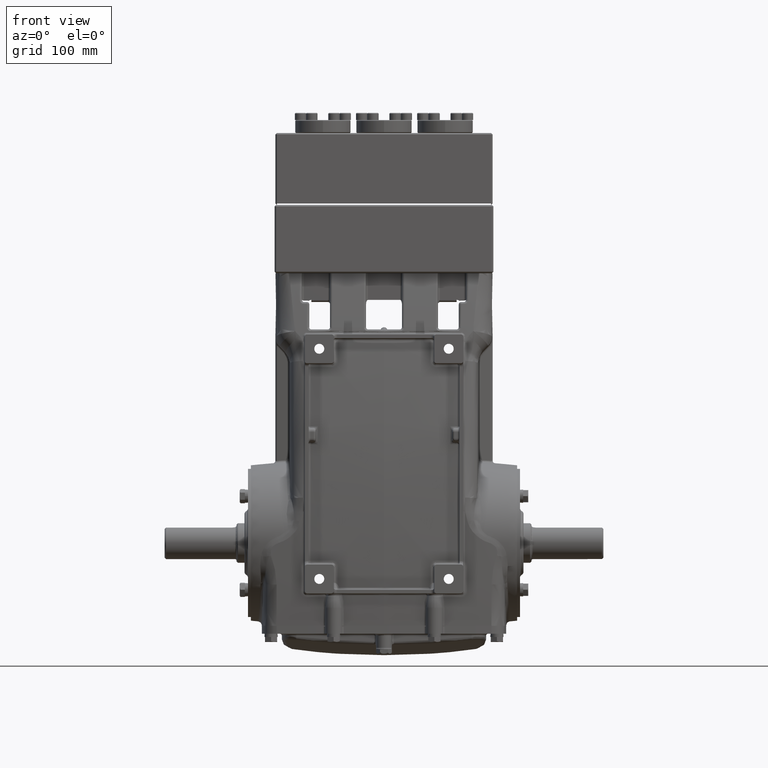
[diagram: clean part render]
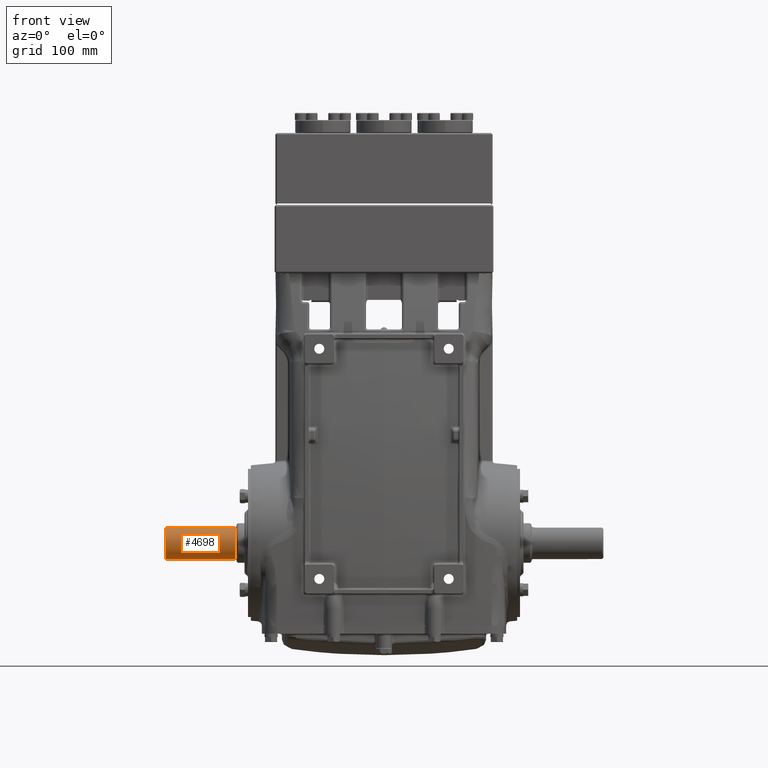
[diagram: same view with one face highlighted and labeled with its STEP entity id]
A machine part, front view. The second image highlights one B-rep face of the part: STEP entity #4698.
In plain terms, the highlighted cylindrical surface (edge-blend (fillet) strip) has radius 22.5 mm, axis along (1, -0, -0).
Its self-contained STEP definition (entity closure, byte-faithful):
#359 = CARTESIAN_POINT ( 'NONE',  ( -8.256239951148126366, -0.2605671799535790867, 0.8466415289152062762 ) ) ;
#1081 = CARTESIAN_POINT ( 'NONE',  ( -8.149606299212598159, 0.000000000000000000, -0.8858267716535433989 ) ) ;
#1147 = CARTESIAN_POINT ( 'NONE',  ( -8.247673071881232332, -0.2574385571765950842, 0.8476013659305283721 ) ) ;
#1526 = LINE ( 'NONE', #30376, #25406 ) ;
#4698 = ADVANCED_FACE ( 'NONE', ( #67054 ), #43008, .T. ) ;
#7264 = CARTESIAN_POINT ( 'NONE',  ( -8.149606299212598159, 0.000000000000000000, 0.000000000000000000 ) ) ;
#9033 = ORIENTED_EDGE ( 'NONE', *, *, #10081, .T. ) ;
#9686 = CARTESIAN_POINT ( 'NONE',  ( -11.92913385826771488, 0.000000000000000000, -0.8858267716535433989 ) ) ;
#10081 = EDGE_CURVE ( 'NONE', #78208, #75008, #34289, .T. ) ;
#13503 = AXIS2_PLACEMENT_3D ( 'NONE', #65529, #35070, #22655 ) ;
#18765 = CARTESIAN_POINT ( 'NONE',  ( -8.273768425878982313, -0.2659900968066949423, 0.8449534911186555863 ) ) ;
#18966 = DIRECTION ( 'NONE',  ( 0.000000000000000000, 0.000000000000000000, -1.000000000000000000 ) ) ;
#22165 = EDGE_CURVE ( 'NONE', #76443, #47158, #1526, .T. ) ;
#22655 = DIRECTION ( 'NONE',  ( 0.000000000000000000, 0.000000000000000000, 1.000000000000000000 ) ) ;
#25406 = VECTOR ( 'NONE', #79209, 39.37007874015748143 ) ;
#25546 = CARTESIAN_POINT ( 'NONE',  ( -8.346456692913385211, -0.2755905511811023167, 0.8418663299347676210 ) ) ;
#26272 = CIRCLE ( 'NONE', #13503, 0.8858267716535433989 ) ;
#28254 = EDGE_LOOP ( 'NONE', ( #43400, #71058, #49044, #9033, #38393 ) ) ;
#30376 = CARTESIAN_POINT ( 'NONE',  ( -12.00787401574803148, 0.000000000000000000, -0.8858267716535433989 ) ) ;
#31960 = CARTESIAN_POINT ( 'NONE',  ( -8.222543806565662194, -0.2468327346962480018, 0.8507744342314309538 ) ) ;
#34289 = B_SPLINE_CURVE_WITH_KNOTS ( 'NONE', 3,
 ( #79221, #68032, #55197, #55995, #31960, #1147, #359, #18765, #36784, #43200, #67244, #25546 ),
 .UNSPECIFIED., .F., .F.,
 ( 4, 2, 2, 2, 2, 4 ),
 ( 0.005430606697455180563, 0.006826616170667087861, 0.008222625643878996027, 0.008920630380484911512, 0.009618635117090826997, 0.01101464459030265970 ),
 .UNSPECIFIED. ) ;
#35070 = DIRECTION ( 'NONE',  ( 1.000000000000000000, 0.000000000000000000, 0.000000000000000000 ) ) ;
#36724 = AXIS2_PLACEMENT_3D ( 'NONE', #7264, #74908, #50480 ) ;
#36784 = CARTESIAN_POINT ( 'NONE',  ( -8.282784261081184596, -0.2682925596649305966, 0.8442226319676584545 ) ) ;
#36912 = AXIS2_PLACEMENT_3D ( 'NONE', #37768, #56199, #18966 ) ;
#37768 = CARTESIAN_POINT ( 'NONE',  ( -12.00787401574803148, 0.000000000000000000, 0.000000000000000000 ) ) ;
#38393 = ORIENTED_EDGE ( 'NONE', *, *, #59900, .T. ) ;
#43008 = CYLINDRICAL_SURFACE ( 'NONE', #36912, 0.8858267716535433989 ) ;
#43094 = CARTESIAN_POINT ( 'NONE',  ( -8.149606299212603489, -0.1928732080931684356, 0.8645744588975481371 ) ) ;
#43200 = CARTESIAN_POINT ( 'NONE',  ( -8.309881745342988069, -0.2737738521065506969, 0.8424676073061592163 ) ) ;
#43400 = ORIENTED_EDGE ( 'NONE', *, *, #66810, .T. ) ;
#45495 = EDGE_CURVE ( 'NONE', #47158, #78208, #71266, .T. ) ;
#46814 = CARTESIAN_POINT ( 'NONE',  ( -12.00787401574803148, -0.2755905511811023723, 0.8418663299347676210 ) ) ;
#47158 = VERTEX_POINT ( 'NONE', #1081 ) ;
#49044 = ORIENTED_EDGE ( 'NONE', *, *, #45495, .T. ) ;
#50480 = DIRECTION ( 'NONE',  ( 0.000000000000000000, 0.000000000000000000, -1.000000000000000000 ) ) ;
#54618 = CARTESIAN_POINT ( 'NONE',  ( -8.346456692913385211, -0.2755905511811023167, 0.8418663299347676210 ) ) ;
#55197 = CARTESIAN_POINT ( 'NONE',  ( -8.176172643793153227, -0.2174619728629873794, 0.8587860226511100370 ) ) ;
#55995 = CARTESIAN_POINT ( 'NONE',  ( -8.206483361284140798, -0.2381046691244285696, 0.8532932138974982372 ) ) ;
#56199 = DIRECTION ( 'NONE',  ( 1.000000000000000000, -0.000000000000000000, -0.000000000000000000 ) ) ;
#59900 = EDGE_CURVE ( 'NONE', #75008, #79112, #79203, .T. ) ;
#65529 = CARTESIAN_POINT ( 'NONE',  ( -11.92913385826771488, 0.000000000000000000, 0.000000000000000000 ) ) ;
#66810 = EDGE_CURVE ( 'NONE', #79112, #76443, #26272, .T. ) ;
#67054 = FACE_OUTER_BOUND ( 'NONE', #28254, .T. ) ;
#67244 = CARTESIAN_POINT ( 'NONE',  ( -8.328095311202419637, -0.2755905511811020947, 0.8418663299347675100 ) ) ;
#68032 = CARTESIAN_POINT ( 'NONE',  ( -8.162286858031546188, -0.2058152492430677938, 0.8616872894118363657 ) ) ;
#70149 = CARTESIAN_POINT ( 'NONE',  ( -11.92913385826771488, -0.2755905511811023723, 0.8418663299347676210 ) ) ;
#71058 = ORIENTED_EDGE ( 'NONE', *, *, #22165, .T. ) ;
#71266 = CIRCLE ( 'NONE', #36724, 0.8858267716535433989 ) ;
#71646 = DIRECTION ( 'NONE',  ( -1.000000000000000000, 0.000000000000000000, 0.000000000000000000 ) ) ;
#73560 = VECTOR ( 'NONE', #71646, 39.37007874015748143 ) ;
#74908 = DIRECTION ( 'NONE',  ( -1.000000000000000000, -0.000000000000000000, -0.000000000000000000 ) ) ;
#75008 = VERTEX_POINT ( 'NONE', #54618 ) ;
#76443 = VERTEX_POINT ( 'NONE', #9686 ) ;
#78208 = VERTEX_POINT ( 'NONE', #43094 ) ;
#79112 = VERTEX_POINT ( 'NONE', #70149 ) ;
#79203 = LINE ( 'NONE', #46814, #73560 ) ;
#79209 = DIRECTION ( 'NONE',  ( 1.000000000000000000, -0.000000000000000000, -0.000000000000000000 ) ) ;
#79221 = CARTESIAN_POINT ( 'NONE',  ( -8.149606299212603489, -0.1928732080931684356, 0.8645744588975481371 ) ) ;